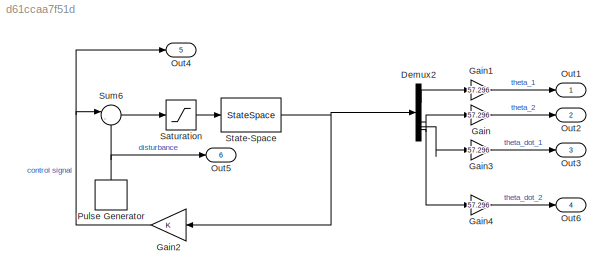
MODEL slx_d61ccaa7f51d
KIND model
CONFIG AbsTol = auto
CONFIG EnableMultiTasking = off
CONFIG FixedStep = auto
CONFIG MaxStep = 0.01
CONFIG MinStep = auto
CONFIG RelTol = 1e-10
CONFIG SampleTimeConstraint = Unconstrained
CONFIG SolverName = VariableStepAuto
CONFIG StartTime = 0.0
CONFIG StopTime = 10
BLOCK [Demux] Demux2
BLOCK [Gain] Gain
  Gain = 57.296
BLOCK [Gain] Gain1
  Gain = 57.296
BLOCK [Gain] Gain2
  Gain = K
  Multiplication = Matrix(K*u)
  NameLocation = top
BLOCK [Gain] Gain3
  Gain = 57.296
BLOCK [Gain] Gain4
  Gain = 57.296
BLOCK [Outport] Out1
BLOCK [Outport] Out2
  Port = 2
BLOCK [Outport] Out3
  Port = 3
BLOCK [Outport] Out4
  Port = 5
BLOCK [Outport] Out5
  Port = 6
BLOCK [Outport] Out6
  Port = 4
BLOCK [DiscretePulseGenerator] Pulse Generator
  NameLocation = right
  Period = 10
  PhaseDelay = 1
  PulseType = Time based
  PulseWidth = 10
BLOCK [Saturate] Saturation
  LowerLimit = -12
  UpperLimit = 12
BLOCK [StateSpace] State-Space
  A = A
  B = B
  C = C
  D = D
  InitialCondition = [0, 0, 0, 0]
BLOCK [Sum] Sum6
  Inputs = |-+
LINE Demux2:1 -> Gain1:1
LINE Demux2:2 -> Gain:1
LINE Demux2:3 -> Gain3:1
LINE Demux2:4 -> Gain4:1
LINE Gain1:1 -> Out1:1
NET Gain2:1 -> Out4:1, Sum6:1
LINE Gain3:1 -> Out3:1
LINE Gain4:1 -> Out6:1
LINE Gain:1 -> Out2:1
NET Pulse Generator:1 -> Out5:1, Sum6:2
LINE Saturation:1 -> State-Space:1
NET State-Space:1 -> Demux2:1, Gain2:1
LINE Sum6:1 -> Saturation:1
note: NET lines group one-source signal fan-out (src -> all destinations, sorted); 1:1 wires keep LINE
